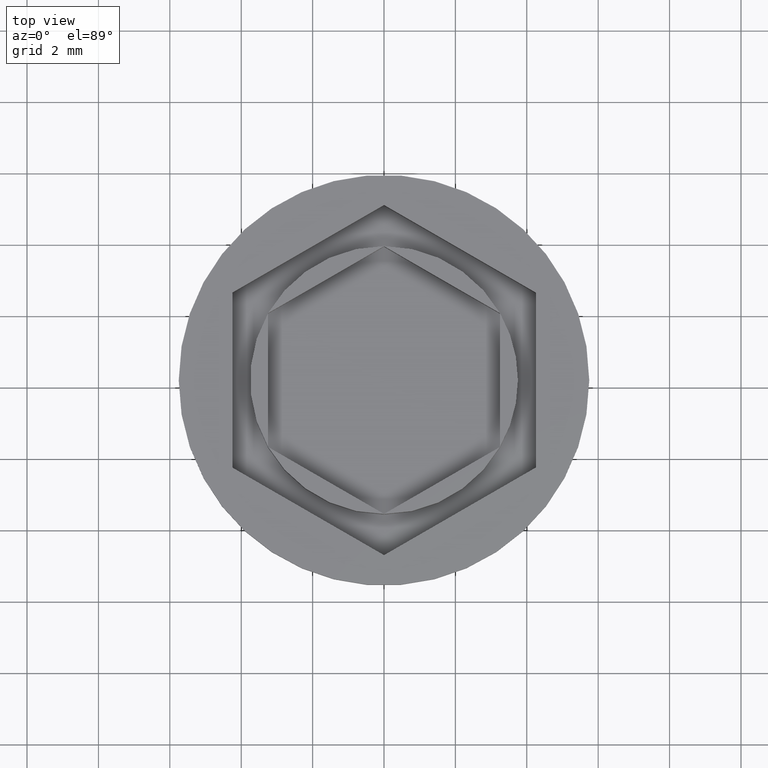
[diagram: clean part render]
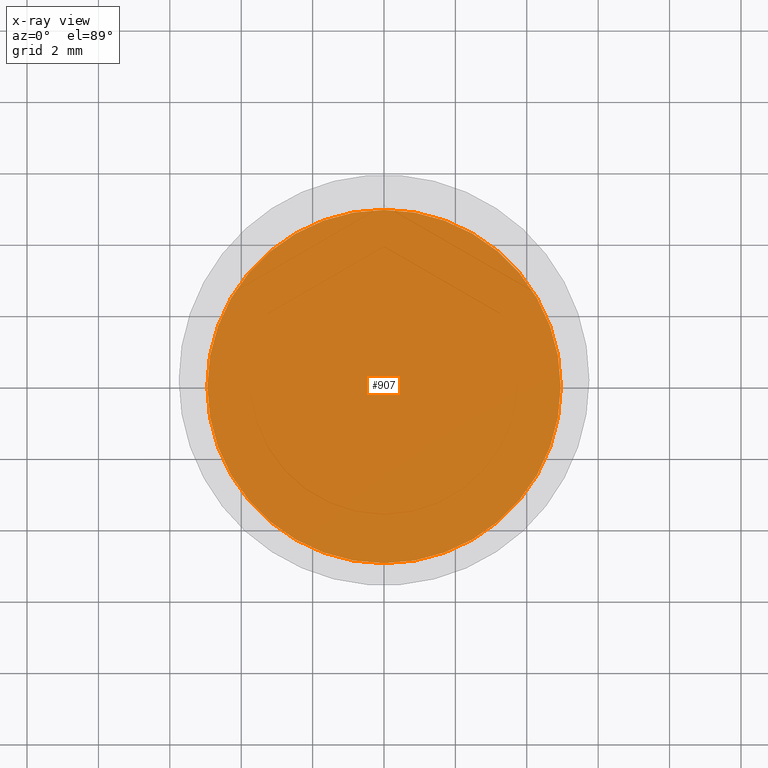
[diagram: x-ray — body ghosted, one internal face saturated and labeled with its STEP entity id]
A machine part, top view, then the same camera in x-ray: the body is ghosted and one INTERNAL B-rep face — a face not visible from any outside direction — is saturated and labeled: STEP entity #907.
In plain terms, the highlighted planar face has unit normal (0, 0, -1).
Its self-contained STEP definition (entity closure, byte-faithful):
#42 = CIRCLE ( 'NONE', #1844, 4.950000000000001066 ) ;
#120 = CARTESIAN_POINT ( 'NONE',  ( 0.000000000000000000, 0.000000000000000000, -10.50000000000000000 ) ) ;
#129 = DIRECTION ( 'NONE',  ( -1.000000000000000000, 0.000000000000000000, 0.000000000000000000 ) ) ;
#164 = VERTEX_POINT ( 'NONE', #296 ) ;
#234 = EDGE_LOOP ( 'NONE', ( #1321, #1242 ) ) ;
#235 = PLANE ( 'NONE',  #1875 ) ;
#296 = CARTESIAN_POINT ( 'NONE',  ( -4.950000000000001066, 0.000000000000000000, -10.50000000000000000 ) ) ;
#391 = AXIS2_PLACEMENT_3D ( 'NONE', #393, #695, #1768 ) ;
#393 = CARTESIAN_POINT ( 'NONE',  ( 0.000000000000000000, 0.000000000000000000, -10.50000000000000000 ) ) ;
#407 = DIRECTION ( 'NONE',  ( 0.000000000000000000, 0.000000000000000000, -1.000000000000000000 ) ) ;
#412 = EDGE_CURVE ( 'NONE', #588, #164, #1258, .T. ) ;
#439 = CARTESIAN_POINT ( 'NONE',  ( 0.000000000000000000, 0.000000000000000000, -10.50000000000000000 ) ) ;
#588 = VERTEX_POINT ( 'NONE', #1191 ) ;
#695 = DIRECTION ( 'NONE',  ( -0.000000000000000000, -0.000000000000000000, 1.000000000000000000 ) ) ;
#897 = DIRECTION ( 'NONE',  ( -0.000000000000000000, -0.000000000000000000, 1.000000000000000000 ) ) ;
#907 = ADVANCED_FACE ( 'NONE', ( #1795 ), #235, .F. ) ;
#956 = EDGE_CURVE ( 'NONE', #164, #588, #42, .T. ) ;
#1191 = CARTESIAN_POINT ( 'NONE',  ( 4.950000000000001066, 6.245698675651502811E-16, -10.50000000000000000 ) ) ;
#1242 = ORIENTED_EDGE ( 'NONE', *, *, #412, .T. ) ;
#1258 = CIRCLE ( 'NONE', #391, 4.950000000000001066 ) ;
#1321 = ORIENTED_EDGE ( 'NONE', *, *, #956, .T. ) ;
#1627 = DIRECTION ( 'NONE',  ( -1.000000000000000000, 0.000000000000000000, -0.000000000000000000 ) ) ;
#1768 = DIRECTION ( 'NONE',  ( -1.000000000000000000, 0.000000000000000000, 0.000000000000000000 ) ) ;
#1795 = FACE_OUTER_BOUND ( 'NONE', #234, .T. ) ;
#1844 = AXIS2_PLACEMENT_3D ( 'NONE', #439, #897, #129 ) ;
#1875 = AXIS2_PLACEMENT_3D ( 'NONE', #120, #407, #1627 ) ;